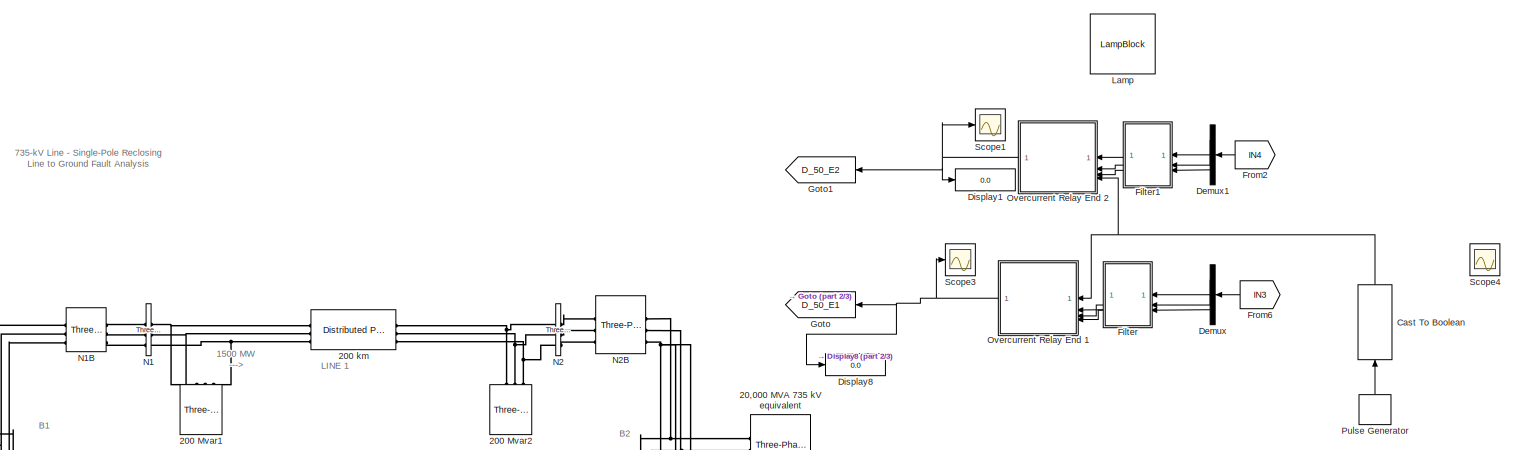
[diagram: root canvas - part 1/3, top right region]
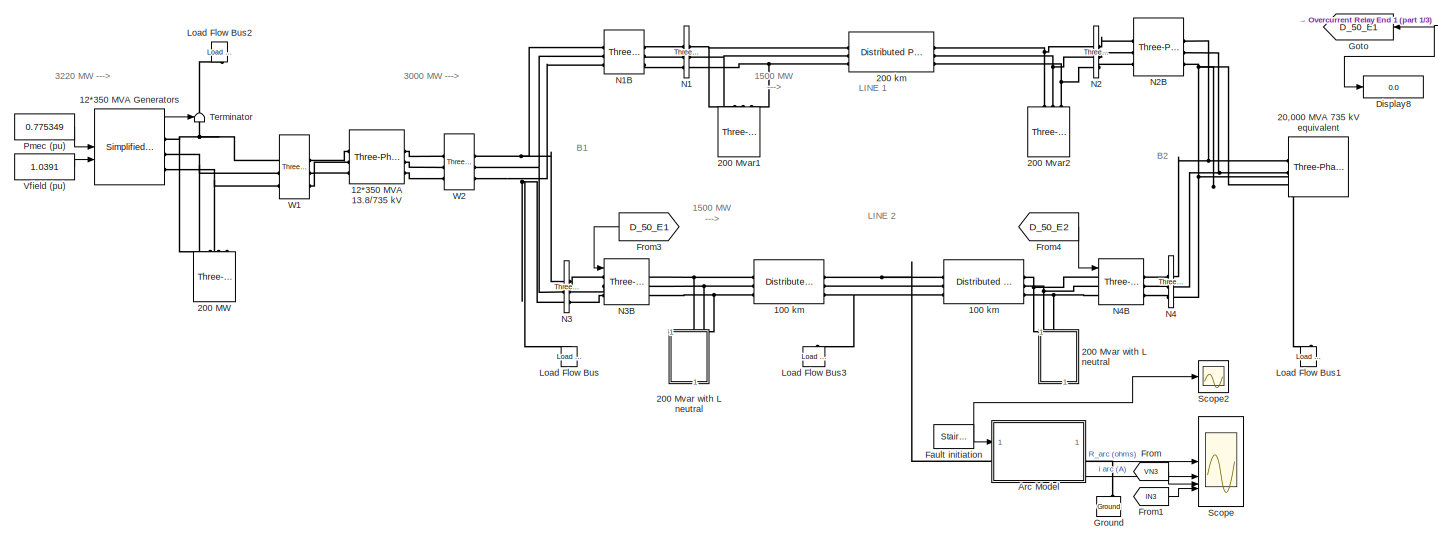
[diagram: root canvas - part 2/3, central region]
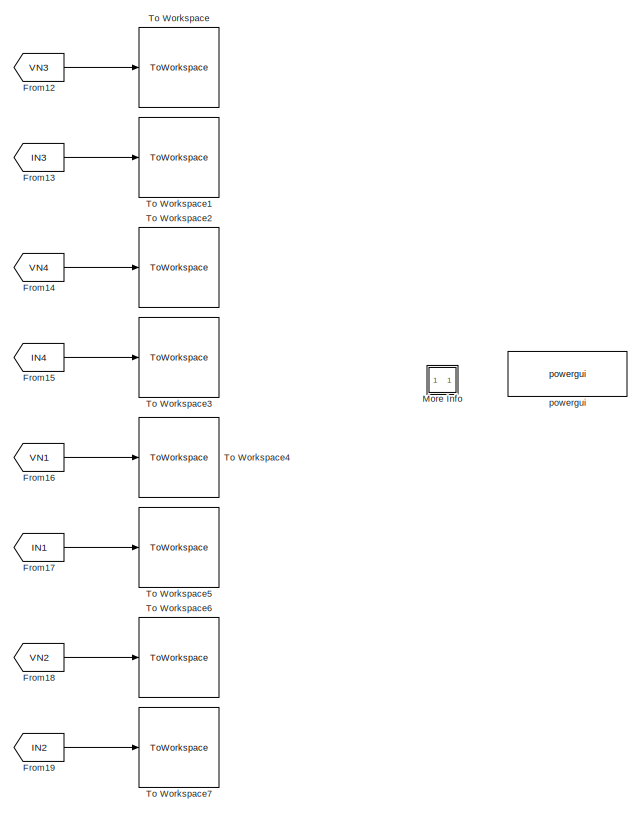
[diagram: root canvas - part 3/3, bottom left region]
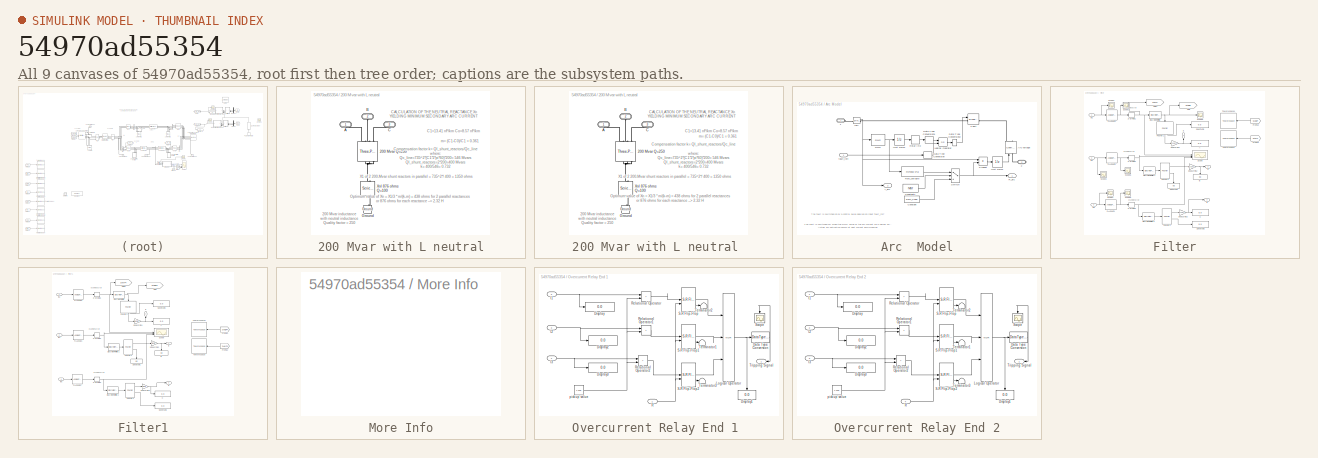
[diagram: thumbnail index - all 9 canvases of the model, root first then tree order]
MODEL slx_54970ad55354
KIND model
CONFIG AbsTol = auto
CONFIG EnableMultiTasking = off
CONFIG FixedStep = 1e-5
CONFIG MaxStep = auto
CONFIG MinStep = auto
CONFIG RelTol = 1e-4
CONFIG SampleTimeConstraint = Unconstrained
CONFIG SolverName = ode4
CONFIG StartTime = 0.0
CONFIG StopTime = 1
BLOCK [Reference]   N3B  REF=spsThreePhaseBreakerLib/Three-Phase Breaker
  AttributesFormatString = \n
  SourceBlock = spsThreePhaseBreakerLib/Three-Phase Breaker
  SourceType = Three-Phase Breaker
BLOCK [Reference]   N4B  REF=spsThreePhaseBreakerLib/Three-Phase Breaker
  AttributesFormatString = \n
  SourceBlock = spsThreePhaseBreakerLib/Three-Phase Breaker
  SourceType = Three-Phase Breaker
BLOCK [Reference]  N1B  REF=spsThreePhaseBreakerLib/Three-Phase Breaker
  AttributesFormatString = \n
  SourceBlock = spsThreePhaseBreakerLib/Three-Phase Breaker
  SourceType = Three-Phase Breaker
BLOCK [Reference]  W2  REF=spsThreePhaseBreakerLib/Three-Phase Breaker
  AttributesFormatString = \n
  SourceBlock = spsThreePhaseBreakerLib/Three-Phase Breaker
  SourceType = Three-Phase Breaker
BLOCK [Reference] 100  km   REF=spsDistributedParametersLineLib/Distributed Parameters Line
  AttributesFormatString = \n
  SourceBlock = spsDistributedParametersLineLib/Distributed Parameters Line
  SourceType = Distributed Parameters Line
BLOCK [Reference] 100  km    REF=spsDistributedParametersLineLib/Distributed Parameters Line
  AttributesFormatString = \n
  SourceBlock = spsDistributedParametersLineLib/Distributed Parameters Line
  SourceType = Distributed Parameters Line
BLOCK [Reference] 12*350 MVA 13.8//735 kV  REF=spsThreePhaseTransformerTwoWindingsLib/Three-Phase
Transformer
(Two Windings)
  AttributesFormatString = \n
  SourceBlock = spsThreePhaseTransformerTwoWindingsLib/Three-Phase\nTransformer\n(Two Windings)
  SourceType = Three-Phase Transformer (Two Windings)
BLOCK [Reference] 12*350 MVA Generators  REF=spsSimplifiedSynchronousMachinepuUnitsLib/Simplified Synchronous
Machine pu Units
  AttributesFormatString = \n
  SourceBlock = spsSimplifiedSynchronousMachinepuUnitsLib/Simplified Synchronous\nMachine pu Units
  SourceType = Simplified Synchronous Machine
BLOCK [Reference] 20,000 MVA 735 kV equivalent  REF=spsThreePhaseSourceLib/Three-Phase Source
  SourceBlock = spsThreePhaseSourceLib/Three-Phase Source
  SourceType = Three-Phase Source
BLOCK [Reference] 200  km  REF=spsDistributedParametersLineLib/Distributed Parameters Line
  AttributesFormatString = \n
  NameLocation = top
  SourceBlock = spsDistributedParametersLineLib/Distributed Parameters Line
  SourceType = Distributed Parameters Line
BLOCK [Reference] 200 MW  REF=spsThreePhaseSeriesRLCLoadLib/Three-Phase
Series RLC Load
  AttributesFormatString = \n
  NameLocation = right
  SourceBlock = spsThreePhaseSeriesRLCLoadLib/Three-Phase\nSeries RLC Load
  SourceType = Three-Phase Series RLC Load
BLOCK [SubSystem] 200 Mvar with L neutral
  NameLocation = right
BLOCK [SubSystem] 200 Mvar with L neutral 
  NameLocation = left
BLOCK [Reference] 200 Mvar with L neutral /200 Mvar Q=250  REF=spsThreePhaseSeriesRLCBranchLib/Three-Phase
Series RLC Branch
  AttributesFormatString = \n
  NameLocation = left
  SourceBlock = spsThreePhaseSeriesRLCBranchLib/Three-Phase\nSeries RLC Branch
  SourceType = Three-Phase Series RLC Branch
BLOCK [PMIOPort] 200 Mvar with L neutral /A
  NameLocation = right
  Side = Left
BLOCK [PMIOPort] 200 Mvar with L neutral /B
  NameLocation = right
  Port = 2
  Side = Left
BLOCK [PMIOPort] 200 Mvar with L neutral /C
  NameLocation = right
  Port = 3
  Side = Left
BLOCK [Reference] 200 Mvar with L neutral /Ground  REF=spsGroundLib/Ground
  AttributesFormatString = \n
  NameLocation = right
  SourceBlock = spsGroundLib/Ground
  SourceType = Ground
BLOCK [Reference] 200 Mvar with L neutral /Xnl 876 ohms Q=100  REF=spsSeriesRLCBranchLib/Series RLC Branch
  AttributesFormatString = \n
  NameLocation = left
  SourceBlock = spsSeriesRLCBranchLib/Series RLC Branch
  SourceType = Series RLC Branch
BLOCK [Reference] 200 Mvar with L neutral/200 Mvar Q=250  REF=spsThreePhaseSeriesRLCBranchLib/Three-Phase
Series RLC Branch
  AttributesFormatString = \n
  NameLocation = left
  SourceBlock = spsThreePhaseSeriesRLCBranchLib/Three-Phase\nSeries RLC Branch
  SourceType = Three-Phase Series RLC Branch
BLOCK [PMIOPort] 200 Mvar with L neutral/A
  NameLocation = right
  Side = Left
BLOCK [PMIOPort] 200 Mvar with L neutral/B
  NameLocation = right
  Port = 2
  Side = Left
BLOCK [PMIOPort] 200 Mvar with L neutral/C
  NameLocation = right
  Port = 3
  Side = Left
BLOCK [Reference] 200 Mvar with L neutral/Ground  REF=spsGroundLib/Ground
  AttributesFormatString = \n
  NameLocation = right
  SourceBlock = spsGroundLib/Ground
  SourceType = Ground
BLOCK [Reference] 200 Mvar with L neutral/Xnl 876 ohms Q=100  REF=spsSeriesRLCBranchLib/Series RLC Branch
  AttributesFormatString = \n
  NameLocation = left
  SourceBlock = spsSeriesRLCBranchLib/Series RLC Branch
  SourceType = Series RLC Branch
BLOCK [Reference] 200 Mvar1  REF=spsThreePhaseSeriesRLCLoadLib/Three-Phase
Series RLC Load
  AttributesFormatString = \n
  NameLocation = right
  SourceBlock = spsThreePhaseSeriesRLCLoadLib/Three-Phase\nSeries RLC Load
  SourceType = Three-Phase Series RLC Load
BLOCK [Reference] 200 Mvar2  REF=spsThreePhaseSeriesRLCLoadLib/Three-Phase
Series RLC Load
  AttributesFormatString = \n
  NameLocation = left
  SourceBlock = spsThreePhaseSeriesRLCLoadLib/Three-Phase\nSeries RLC Load
  SourceType = Three-Phase Series RLC Load
BLOCK [SubSystem] Arc  Model
BLOCK [PMIOPort] Arc  Model/1
  Side = Left
BLOCK [PMIOPort] Arc  Model/2
  Port = 2
  Side = Right
BLOCK [Reference] Arc  Model/Arc voltage  REF=spsControlledVoltageSourceLib/Controlled Voltage Source
  AttributesFormatString = \n
  Description = source block
  NameLocation = right
  SourceBlock = spsControlledVoltageSourceLib/Controlled Voltage Source
  SourceType = Controlled Voltage Source
BLOCK [Constant] Arc  Model/Constant
  Value = Rarc_fixed
BLOCK [Constant] Arc  Model/Constant1
  Value = rvar
BLOCK [DataTypeConversion] Arc  Model/Data Type Conversion
  OutDataTypeStr = boolean
BLOCK [DataTypeConversion] Arc  Model/Data Type Conversion1
  OutDataTypeStr = boolean
BLOCK [DataTypeConversion] Arc  Model/Data Type Conversion2
  OutDataTypeStr = double
BLOCK [Reference] Arc  Model/Fault  REF=spsBreakerLib/Breaker
  AttributesFormatString = \n
  SourceBlock = spsBreakerLib/Breaker
  SourceType = Breaker
BLOCK [Reference] Arc  Model/Iarc  REF=spsCurrentMeasurementLib/Current Measurement
  AttributesFormatString = \n
  SourceBlock = spsCurrentMeasurementLib/Current Measurement
  SourceType = Current Measurement
  Tag = PoWeRsYsTeMmEaSuReMeNt
BLOCK [Logic] Arc  Model/Logical Operator
  Operator = OR
BLOCK [Product] Arc  Model/Product
  InputSameDT = on
  OutDataTypeStr = Inherit: Same as first input
  SaturateOnIntegerOverflow = on
BLOCK [Reference] Arc  Model/RMS  REF=spsRMSLib/RMS
  SourceBlock = spsRMSLib/RMS
  SourceType = RMS
BLOCK [Outport] Arc  Model/R_arc
  VectorParamsAs1DForOutWhenUnconnected = off
BLOCK [Fcn] Arc  Model/Rarc_variable
  Expr = R0*exp(-k*u)
BLOCK [Relay] Arc  Model/Relay I>Io
  OffSwitchValue = I0
  OnSwitchValue = I0*1.2
  ZeroCross = off
BLOCK [Switch] Arc  Model/Switch
  SaturateOnIntegerOverflow = off
  Threshold = 0.5
  ZeroCross = off
BLOCK [UnitDelay] Arc  Model/Unit Delay
  HasFrameUpgradeWarning = on
  SampleTime = Ts
BLOCK [UnitDelay] Arc  Model/Unit Delay 
  HasFrameUpgradeWarning = on
  SampleTime = Ts
BLOCK [Inport] Arc  Model/fault_init
BLOCK [Outport] Arc  Model/i_arc
  Port = 2
  VectorParamsAs1DForOutWhenUnconnected = off
BLOCK [DataTypeConversion] Cast To Boolean
  NameLocation = right
  OutDataTypeStr = boolean
  RndMeth = Floor
  SaturateOnIntegerOverflow = off
BLOCK [Demux] Demux
  Outputs = 3
BLOCK [Demux] Demux1
  Outputs = 3
BLOCK [Display] Display1
  Decimation = 1
BLOCK [Display] Display8
  Decimation = 1
BLOCK [Reference] Fault initiation  REF=spsStairGeneratorLib/Stair
Generator
  NameLocation = top
  SourceBlock = spsStairGeneratorLib/Stair\nGenerator
  SourceType = Stair Generator
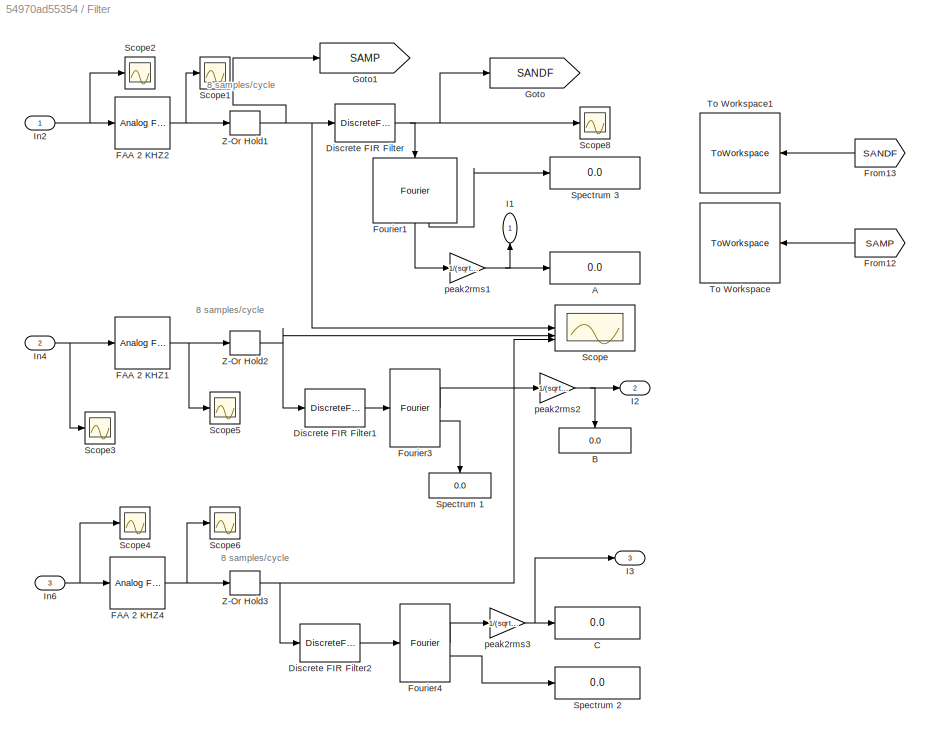
BLOCK [SubSystem] Filter
  NameLocation = top
BLOCK [Display] Filter/A 
  Decimation = 1
BLOCK [Display] Filter/B
  Decimation = 1
  NameLocation = left
BLOCK [Display] Filter/C
  Decimation = 1
BLOCK [DiscreteFir] Filter/Discrete FIR Filter
  CloseFcn = dspblkCoreblockFVToolHelper(gcbh,'close');
  Coefficients = [-0.0186094 -0.0236782 -0.0307391 -0.0185278 0.0274259 0.1023722 0.1816244 0.2325969 0.2325969 0.1816244 0.1023722 0.0274259 -0.0185278 -0.0307391 -0.0236782 -0.0186094]
  CopyFcn = dspblkCoreblockFVToolHelper(gcbh,'copy');
  DeleteFcn = dspblkCoreblockFVToolHelper(gcbh,'close');
  InputPortMap = u0
  LoadFcn = dspblkCoreblockFVToolHelper(gcbh,'load');
  ModelCloseFcn = dspblkCoreblockFVToolHelper(gcbh,'close');
  OutputPortMap = o0
  PostSaveFcn = dspblkCoreblockFVToolHelper(gcbh,'postsave');
  PreSaveFcn = dspblkCoreblockFVToolHelper(gcbh,'presave');
BLOCK [DiscreteFir] Filter/Discrete FIR Filter1
  CloseFcn = dspblkCoreblockFVToolHelper(gcbh,'close');
  Coefficients = [-0.0186094 -0.0236782 -0.0307391 -0.0185278 0.0274259 0.1023722 0.1816244 0.2325969 0.2325969 0.1816244 0.1023722 0.0274259 -0.0185278 -0.0307391 -0.0236782 -0.0186094]
  CopyFcn = dspblkCoreblockFVToolHelper(gcbh,'copy');
  DeleteFcn = dspblkCoreblockFVToolHelper(gcbh,'close');
  InputPortMap = u0
  LoadFcn = dspblkCoreblockFVToolHelper(gcbh,'load');
  ModelCloseFcn = dspblkCoreblockFVToolHelper(gcbh,'close');
  OutputPortMap = o0
  PostSaveFcn = dspblkCoreblockFVToolHelper(gcbh,'postsave');
  PreSaveFcn = dspblkCoreblockFVToolHelper(gcbh,'presave');
BLOCK [DiscreteFir] Filter/Discrete FIR Filter2
  CloseFcn = dspblkCoreblockFVToolHelper(gcbh,'close');
  Coefficients = [-0.0186094 -0.0236782 -0.0307391 -0.0185278 0.0274259 0.1023722 0.1816244 0.2325969 0.2325969 0.1816244 0.1023722 0.0274259 -0.0185278 -0.0307391 -0.0236782 -0.0186094]
  CopyFcn = dspblkCoreblockFVToolHelper(gcbh,'copy');
  DeleteFcn = dspblkCoreblockFVToolHelper(gcbh,'close');
  InputPortMap = u0
  LoadFcn = dspblkCoreblockFVToolHelper(gcbh,'load');
  ModelCloseFcn = dspblkCoreblockFVToolHelper(gcbh,'close');
  OutputPortMap = o0
  PostSaveFcn = dspblkCoreblockFVToolHelper(gcbh,'postsave');
  PreSaveFcn = dspblkCoreblockFVToolHelper(gcbh,'presave');
BLOCK [Reference] Filter/FAA 2 KHZ1  REF=dspfdesign/Analog
Filter Design
  SourceBlock = dspfdesign/Analog\nFilter Design
  SourceType = Analog Filter Design
BLOCK [Reference] Filter/FAA 2 KHZ2  REF=dspfdesign/Analog
Filter Design
  SourceBlock = dspfdesign/Analog\nFilter Design
  SourceType = Analog Filter Design
BLOCK [Reference] Filter/FAA 2 KHZ4  REF=dspfdesign/Analog
Filter Design
  SourceBlock = dspfdesign/Analog\nFilter Design
  SourceType = Analog Filter Design
BLOCK [Reference] Filter/Fourier1  REF=powerlib_extras/Measurements/Fourier
  NameLocation = left
  SourceBlock = powerlib_extras/Measurements/Fourier
  SourceType = Fourier analyser
BLOCK [Reference] Filter/Fourier3  REF=powerlib_extras/Measurements/Fourier
  SourceBlock = powerlib_extras/Measurements/Fourier
  SourceType = Fourier analyser
BLOCK [Reference] Filter/Fourier4  REF=powerlib_extras/Measurements/Fourier
  SourceBlock = powerlib_extras/Measurements/Fourier
  SourceType = Fourier analyser
BLOCK [From] Filter/From12
  GotoTag = SAMP
  NameLocation = top
BLOCK [From] Filter/From13
  GotoTag = SANDF
  NameLocation = top
BLOCK [Goto] Filter/Goto
  GotoTag = SANDF
BLOCK [Goto] Filter/Goto1
  GotoTag = SAMP
BLOCK [Outport] Filter/I1
  NameLocation = right
BLOCK [Outport] Filter/I2
  Port = 2
BLOCK [Outport] Filter/I3
  Port = 3
BLOCK [Inport] Filter/In2
BLOCK [Inport] Filter/In4
  Port = 2
BLOCK [Inport] Filter/In6
  Port = 3
BLOCK [Scope] Filter/Scope
  Floating = off
  NumInputPorts = 3
  ScopeSpecificationString = Simulink.scopes.TimeScopeBlockCfg('CurrentConfiguration', extmgr.ConfigurationSet(extmgr.Configuration('Core','General UI',true),extmgr.Configuration('Core','Source UI',true),extmgr.Configuration('Sources','WiredSimulink',true,'DataLoggingVariableName','ScopeData4'),extmgr.Configuration('Visuals','Time Domain',true,'SerializedDisplays',{struct('MinYLimReal','-19.16189','MaxYLimReal','18.88077','YL...<+3076ch>
BLOCK [Scope] Filter/Scope1
  Floating = off
  NumInputPorts = 1
  ScopeSpecificationString = Simulink.scopes.TimeScopeBlockCfg('CurrentConfiguration', extmgr.ConfigurationSet(extmgr.Configuration('Core','General UI',true),extmgr.Configuration('Core','Source UI',true),extmgr.Configuration('Sources','WiredSimulink',true,'DataLoggingVariableName','ScopeData8','DataLogging',true,'DataLoggingSaveFormat','StructureWithTime'),extmgr.Configuration('Visuals','Time Domain',true,'SerializedDisplays'...<+2251ch>
BLOCK [Scope] Filter/Scope2
  Floating = off
  NumInputPorts = 1
  ScopeSpecificationString = Simulink.scopes.TimeScopeBlockCfg('CurrentConfiguration', extmgr.ConfigurationSet(extmgr.Configuration('Core','General UI',true),extmgr.Configuration('Core','Source UI',true),extmgr.Configuration('Sources','WiredSimulink',true,'DataLoggingVariableName','ScopeData9','DataLogging',true,'DataLoggingSaveFormat','StructureWithTime'),extmgr.Configuration('Visuals','Time Domain',true,'SerializedDisplays'...<+1587ch>
BLOCK [Scope] Filter/Scope3
  Floating = off
  NumInputPorts = 1
  ScopeSpecificationString = Simulink.scopes.TimeScopeBlockCfg('CurrentConfiguration', extmgr.ConfigurationSet(extmgr.Configuration('Core','General UI',true),extmgr.Configuration('Core','Source UI',true),extmgr.Configuration('Sources','WiredSimulink',true,'DataLoggingVariableName','ScopeData10','DataLogging',true,'DataLoggingSaveFormat','StructureWithTime'),extmgr.Configuration('Visuals','Time Domain',true,'SerializedDisplays...<+1548ch>
BLOCK [Scope] Filter/Scope4
  Floating = off
  NumInputPorts = 1
  ScopeSpecificationString = Simulink.scopes.TimeScopeBlockCfg('CurrentConfiguration', extmgr.ConfigurationSet(extmgr.Configuration('Core','General UI',true),extmgr.Configuration('Core','Source UI',true),extmgr.Configuration('Sources','WiredSimulink',true,'DataLoggingVariableName','ScopeData11','DataLogging',true,'DataLoggingSaveFormat','StructureWithTime'),extmgr.Configuration('Visuals','Time Domain',true,'SerializedDisplays...<+1521ch>
BLOCK [Scope] Filter/Scope5
  Floating = off
  NumInputPorts = 1
  ScopeSpecificationString = Simulink.scopes.TimeScopeBlockCfg('CurrentConfiguration', extmgr.ConfigurationSet(extmgr.Configuration('Core','General UI',true),extmgr.Configuration('Core','Source UI',true),extmgr.Configuration('Sources','WiredSimulink',true,'DataLoggingVariableName','ScopeData12','DataLogging',true,'DataLoggingSaveFormat','StructureWithTime'),extmgr.Configuration('Visuals','Time Domain',true,'SerializedDisplays...<+1605ch>
BLOCK [Scope] Filter/Scope6
  Floating = off
  NumInputPorts = 1
  ScopeSpecificationString = Simulink.scopes.TimeScopeBlockCfg('CurrentConfiguration', extmgr.ConfigurationSet(extmgr.Configuration('Core','General UI',true),extmgr.Configuration('Core','Source UI',true),extmgr.Configuration('Sources','WiredSimulink',true,'DataLoggingVariableName','ScopeData13','DataLogging',true,'DataLoggingSaveFormat','StructureWithTime'),extmgr.Configuration('Visuals','Time Domain',true,'SerializedDisplays...<+1597ch>
BLOCK [Scope] Filter/Scope8
  Floating = off
  NumInputPorts = 1
  ScopeSpecificationString = Simulink.scopes.TimeScopeBlockCfg('CurrentConfiguration', extmgr.ConfigurationSet(extmgr.Configuration('Core','General UI',true),extmgr.Configuration('Core','Source UI',true),extmgr.Configuration('Sources','WiredSimulink',true,'DataLoggingVariableName','ScopeData1','DataLogging',true,'DataLoggingSaveFormat','StructureWithTime'),extmgr.Configuration('Visuals','Time Domain',true,'SerializedDisplays'...<+1605ch>
BLOCK [Display] Filter/Spectrum 1
  Decimation = 1
  NameLocation = left
BLOCK [Display] Filter/Spectrum 2
  Decimation = 1
BLOCK [Display] Filter/Spectrum 3
  Decimation = 1
BLOCK [ToWorkspace] Filter/To Workspace
  FixptAsFi = on
  MaxDataPoints = inf
  NameLocation = top
  SampleTime = -1
  SaveFormat = Timeseries
  VariableName = SAMP
BLOCK [ToWorkspace] Filter/To Workspace1
  FixptAsFi = on
  MaxDataPoints = inf
  NameLocation = top
  SampleTime = -1
  SaveFormat = Timeseries
  VariableName = SANDF
BLOCK [ZeroOrderHold] Filter/Z-Or Hold1
  SampleTime = 0.002
BLOCK [ZeroOrderHold] Filter/Z-Or Hold2
  SampleTime = 0.002
BLOCK [ZeroOrderHold] Filter/Z-Or Hold3
  SampleTime = 0.002
BLOCK [Gain] Filter/peak2rms1
  Gain = 1/(sqrt(2))
  NameLocation = top
  OutDataTypeStr = Inherit: Same as input
  ParamDataTypeStr = Inherit: Same as input
  SaturateOnIntegerOverflow = on
BLOCK [Gain] Filter/peak2rms2
  Gain = 1/(sqrt(2))
  NameLocation = top
  OutDataTypeStr = Inherit: Same as input
  ParamDataTypeStr = Inherit: Same as input
  SaturateOnIntegerOverflow = on
BLOCK [Gain] Filter/peak2rms3
  Gain = 1/(sqrt(2))
  NameLocation = top
  OutDataTypeStr = Inherit: Same as input
  ParamDataTypeStr = Inherit: Same as input
  SaturateOnIntegerOverflow = on
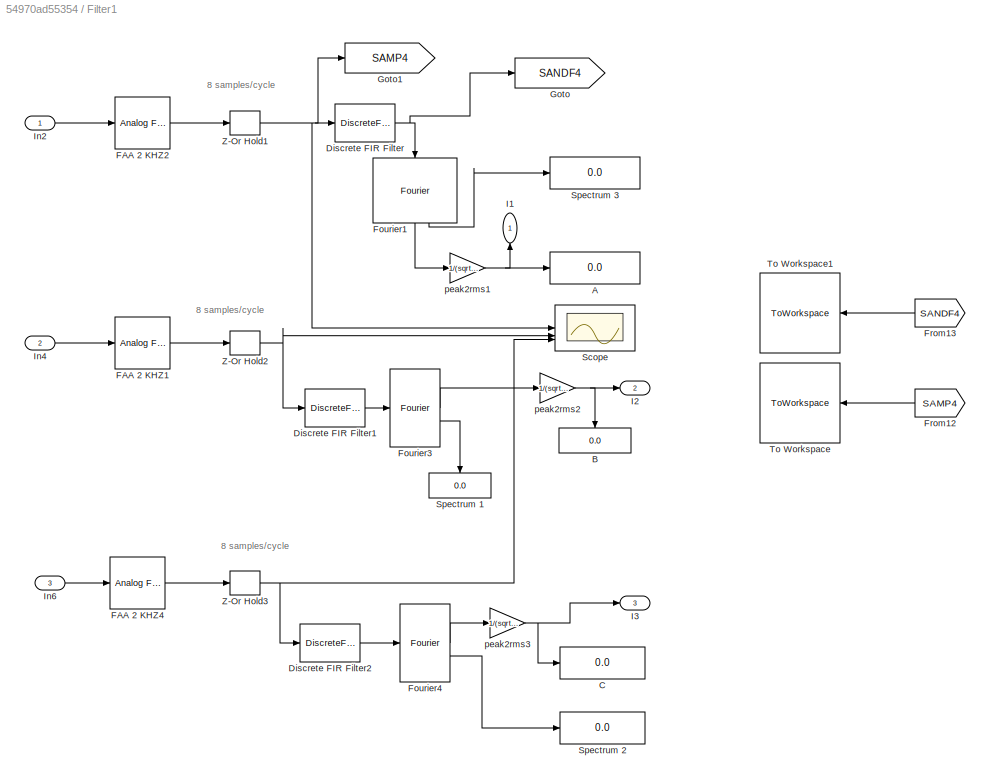
BLOCK [SubSystem] Filter1
  NameLocation = top
BLOCK [Display] Filter1/A 
  Decimation = 1
BLOCK [Display] Filter1/B
  Decimation = 1
  NameLocation = left
BLOCK [Display] Filter1/C
  Decimation = 1
BLOCK [DiscreteFir] Filter1/Discrete FIR Filter
  CloseFcn = dspblkCoreblockFVToolHelper(gcbh,'close');
  Coefficients = [-0.0186094 -0.0236782 -0.0307391 -0.0185278 0.0274259 0.1023722 0.1816244 0.2325969 0.2325969 0.1816244 0.1023722 0.0274259 -0.0185278 -0.0307391 -0.0236782 -0.0186094]
  CopyFcn = dspblkCoreblockFVToolHelper(gcbh,'copy');
  DeleteFcn = dspblkCoreblockFVToolHelper(gcbh,'close');
  InputPortMap = u0
  LoadFcn = dspblkCoreblockFVToolHelper(gcbh,'load');
  ModelCloseFcn = dspblkCoreblockFVToolHelper(gcbh,'close');
  OutputPortMap = o0
  PostSaveFcn = dspblkCoreblockFVToolHelper(gcbh,'postsave');
  PreSaveFcn = dspblkCoreblockFVToolHelper(gcbh,'presave');
BLOCK [DiscreteFir] Filter1/Discrete FIR Filter1
  CloseFcn = dspblkCoreblockFVToolHelper(gcbh,'close');
  Coefficients = [-0.0186094 -0.0236782 -0.0307391 -0.0185278 0.0274259 0.1023722 0.1816244 0.2325969 0.2325969 0.1816244 0.1023722 0.0274259 -0.0185278 -0.0307391 -0.0236782 -0.0186094]
  CopyFcn = dspblkCoreblockFVToolHelper(gcbh,'copy');
  DeleteFcn = dspblkCoreblockFVToolHelper(gcbh,'close');
  InputPortMap = u0
  LoadFcn = dspblkCoreblockFVToolHelper(gcbh,'load');
  ModelCloseFcn = dspblkCoreblockFVToolHelper(gcbh,'close');
  OutputPortMap = o0
  PostSaveFcn = dspblkCoreblockFVToolHelper(gcbh,'postsave');
  PreSaveFcn = dspblkCoreblockFVToolHelper(gcbh,'presave');
BLOCK [DiscreteFir] Filter1/Discrete FIR Filter2
  CloseFcn = dspblkCoreblockFVToolHelper(gcbh,'close');
  Coefficients = [-0.0186094 -0.0236782 -0.0307391 -0.0185278 0.0274259 0.1023722 0.1816244 0.2325969 0.2325969 0.1816244 0.1023722 0.0274259 -0.0185278 -0.0307391 -0.0236782 -0.0186094]
  CopyFcn = dspblkCoreblockFVToolHelper(gcbh,'copy');
  DeleteFcn = dspblkCoreblockFVToolHelper(gcbh,'close');
  InputPortMap = u0
  LoadFcn = dspblkCoreblockFVToolHelper(gcbh,'load');
  ModelCloseFcn = dspblkCoreblockFVToolHelper(gcbh,'close');
  OutputPortMap = o0
  PostSaveFcn = dspblkCoreblockFVToolHelper(gcbh,'postsave');
  PreSaveFcn = dspblkCoreblockFVToolHelper(gcbh,'presave');
BLOCK [Reference] Filter1/FAA 2 KHZ1  REF=dspfdesign/Analog
Filter Design
  SourceBlock = dspfdesign/Analog\nFilter Design
  SourceType = Analog Filter Design
BLOCK [Reference] Filter1/FAA 2 KHZ2  REF=dspfdesign/Analog
Filter Design
  SourceBlock = dspfdesign/Analog\nFilter Design
  SourceType = Analog Filter Design
BLOCK [Reference] Filter1/FAA 2 KHZ4  REF=dspfdesign/Analog
Filter Design
  SourceBlock = dspfdesign/Analog\nFilter Design
  SourceType = Analog Filter Design
BLOCK [Reference] Filter1/Fourier1  REF=powerlib_extras/Measurements/Fourier
  NameLocation = left
  SourceBlock = powerlib_extras/Measurements/Fourier
  SourceType = Fourier analyser
BLOCK [Reference] Filter1/Fourier3  REF=powerlib_extras/Measurements/Fourier
  SourceBlock = powerlib_extras/Measurements/Fourier
  SourceType = Fourier analyser
BLOCK [Reference] Filter1/Fourier4  REF=powerlib_extras/Measurements/Fourier
  SourceBlock = powerlib_extras/Measurements/Fourier
  SourceType = Fourier analyser
BLOCK [From] Filter1/From12
  GotoTag = SAMP4
  NameLocation = top
BLOCK [From] Filter1/From13
  GotoTag = SANDF4
  NameLocation = top
BLOCK [Goto] Filter1/Goto
  GotoTag = SANDF4
BLOCK [Goto] Filter1/Goto1
  GotoTag = SAMP4
BLOCK [Outport] Filter1/I1
  NameLocation = right
BLOCK [Outport] Filter1/I2
  Port = 2
BLOCK [Outport] Filter1/I3
  Port = 3
BLOCK [Inport] Filter1/In2
BLOCK [Inport] Filter1/In4
  Port = 2
BLOCK [Inport] Filter1/In6
  Port = 3
BLOCK [Scope] Filter1/Scope
  Floating = off
  NumInputPorts = 3
  ScopeSpecificationString = Simulink.scopes.TimeScopeBlockCfg('CurrentConfiguration', extmgr.ConfigurationSet(extmgr.Configuration('Core','General UI',true),extmgr.Configuration('Core','Source UI',true),extmgr.Configuration('Sources','WiredSimulink',true,'DataLoggingVariableName','ScopeData4'),extmgr.Configuration('Visuals','Time Domain',true,'SerializedDisplays',{struct('MinYLimReal','-6071316.37194','MaxYLimReal','54198833...<+3120ch>
BLOCK [Display] Filter1/Spectrum 1
  Decimation = 1
  NameLocation = left
BLOCK [Display] Filter1/Spectrum 2
  Decimation = 1
BLOCK [Display] Filter1/Spectrum 3
  Decimation = 1
BLOCK [ToWorkspace] Filter1/To Workspace
  FixptAsFi = on
  MaxDataPoints = inf
  NameLocation = top
  SampleTime = -1
  SaveFormat = Timeseries
  VariableName = SAMP4
BLOCK [ToWorkspace] Filter1/To Workspace1
  FixptAsFi = on
  MaxDataPoints = inf
  NameLocation = top
  SampleTime = -1
  SaveFormat = Timeseries
  VariableName = SANDF4
BLOCK [ZeroOrderHold] Filter1/Z-Or Hold1
  SampleTime = 0.002
BLOCK [ZeroOrderHold] Filter1/Z-Or Hold2
  SampleTime = 0.002
BLOCK [ZeroOrderHold] Filter1/Z-Or Hold3
  SampleTime = 0.002
BLOCK [Gain] Filter1/peak2rms1
  Gain = 1/(sqrt(2))
  NameLocation = top
  OutDataTypeStr = Inherit: Same as input
  ParamDataTypeStr = Inherit: Same as input
  SaturateOnIntegerOverflow = on
BLOCK [Gain] Filter1/peak2rms2
  Gain = 1/(sqrt(2))
  NameLocation = top
  OutDataTypeStr = Inherit: Same as input
  ParamDataTypeStr = Inherit: Same as input
  SaturateOnIntegerOverflow = on
BLOCK [Gain] Filter1/peak2rms3
  Gain = 1/(sqrt(2))
  NameLocation = top
  OutDataTypeStr = Inherit: Same as input
  ParamDataTypeStr = Inherit: Same as input
  SaturateOnIntegerOverflow = on
BLOCK [From] From
  GotoTag = VN3
  TagVisibility = global
BLOCK [From] From1
  GotoTag = IN3
  TagVisibility = global
BLOCK [From] From12
  GotoTag = VN3
  TagVisibility = global
BLOCK [From] From13
  GotoTag = IN3
  TagVisibility = global
BLOCK [From] From14
  GotoTag = VN4
  TagVisibility = global
BLOCK [From] From15
  GotoTag = IN4
  TagVisibility = global
BLOCK [From] From16
  GotoTag = VN1
  TagVisibility = global
BLOCK [From] From17
  GotoTag = IN1
  TagVisibility = global
BLOCK [From] From18
  GotoTag = VN2
  TagVisibility = global
BLOCK [From] From19
  GotoTag = IN2
  TagVisibility = global
BLOCK [From] From2
  GotoTag = IN4
  TagVisibility = global
BLOCK [From] From3
  GotoTag = D_50_E1
  NameLocation = top
BLOCK [From] From4
  GotoTag = D_50_E2
BLOCK [From] From6
  GotoTag = IN3
  TagVisibility = global
BLOCK [Goto] Goto
  GotoTag = D_50_E1
  NameLocation = top
BLOCK [Goto] Goto1
  GotoTag = D_50_E2
  NameLocation = top
BLOCK [Reference] Ground  REF=spsGroundLib/Ground
  AttributesFormatString = \n
  NameLocation = right
  SourceBlock = spsGroundLib/Ground
  SourceType = Ground
BLOCK [LampBlock] Lamp
  LabelPosition = Hide
BLOCK [Reference] Load Flow Bus  REF=spsLoadFlowBusLib/Load Flow Bus
  AttributesFormatString = %<ID>\n%<Vbase>V\n%<VLF>pu\n%<angleLF>deg.
  NameLocation = right
  SourceBlock = spsLoadFlowBusLib/Load Flow Bus
  SourceType = Load Flow Bus
BLOCK [Reference] Load Flow Bus1  REF=spsLoadFlowBusLib/Load Flow Bus
  AttributesFormatString = %<ID>\n%<Vbase>V\n%<VLF>pu\n%<angleLF>deg.
  NameLocation = right
  SourceBlock = spsLoadFlowBusLib/Load Flow Bus
  SourceType = Load Flow Bus
BLOCK [Reference] Load Flow Bus2  REF=spsLoadFlowBusLib/Load Flow Bus
  AttributesFormatString = %<ID>\n%<Vbase>V\n%<VLF>pu\n%<angleLF>deg.
  NameLocation = right
  SourceBlock = spsLoadFlowBusLib/Load Flow Bus
  SourceType = Load Flow Bus
BLOCK [Reference] Load Flow Bus3  REF=spsLoadFlowBusLib/Load Flow Bus
  AttributesFormatString = %<ID>\n%<Vbase>V\n%<VLF>pu\n%<angleLF>deg.
  NameLocation = left
  SourceBlock = spsLoadFlowBusLib/Load Flow Bus
  SourceType = Load Flow Bus
BLOCK [SubSystem] More Info
  OpenFcn = showExample("simscapeelectricalsps/SinglePoleLineReclosingExample")
BLOCK [Reference] N1  REF=spsThreePhaseVIMeasurementLib/Three-Phase
V-I Measurement
  SourceBlock = spsThreePhaseVIMeasurementLib/Three-Phase\nV-I Measurement
  SourceType = Three-Phase VI Measurement
BLOCK [Reference] N2  REF=spsThreePhaseVIMeasurementLib/Three-Phase
V-I Measurement
  SourceBlock = spsThreePhaseVIMeasurementLib/Three-Phase\nV-I Measurement
  SourceType = Three-Phase VI Measurement
BLOCK [Reference] N2B  REF=spsThreePhaseBreakerLib/Three-Phase Breaker
  AttributesFormatString = \n
  SourceBlock = spsThreePhaseBreakerLib/Three-Phase Breaker
  SourceType = Three-Phase Breaker
BLOCK [Reference] N3  REF=spsThreePhaseVIMeasurementLib/Three-Phase
V-I Measurement
  SourceBlock = spsThreePhaseVIMeasurementLib/Three-Phase\nV-I Measurement
  SourceType = Three-Phase VI Measurement
BLOCK [Reference] N4  REF=spsThreePhaseVIMeasurementLib/Three-Phase
V-I Measurement
  SourceBlock = spsThreePhaseVIMeasurementLib/Three-Phase\nV-I Measurement
  SourceType = Three-Phase VI Measurement
BLOCK [SubSystem] Overcurrent Relay End 1 
  NameLocation = top
BLOCK [DataTypeConversion] Overcurrent Relay End 1 /Data Type Conversion
  OutDataTypeStr = double
  RndMeth = Floor
  SaturateOnIntegerOverflow = off
BLOCK [Display] Overcurrent Relay End 1 /Display
  Decimation = 1
BLOCK [Display] Overcurrent Relay End 1 /Display1
  Decimation = 1
  NameLocation = left
BLOCK [Display] Overcurrent Relay End 1 /Display2
  Decimation = 1
BLOCK [Display] Overcurrent Relay End 1 /Display3
  Decimation = 1
BLOCK [Inport] Overcurrent Relay End 1 /I1
  Port = 2
BLOCK [Inport] Overcurrent Relay End 1 /I2
  Port = 3
BLOCK [Inport] Overcurrent Relay End 1 /I3
  Port = 4
BLOCK [Logic] Overcurrent Relay End 1 /Logical Operator
  AllPortsSameDT = off
  Inputs = 3
  Operator = NOR
  OutDataTypeStr = boolean
BLOCK [Inport] Overcurrent Relay End 1 /R
BLOCK [RelationalOperator] Overcurrent Relay End 1 /Relational Operator
  InputSameDT = off
  Operator = >
  OutDataTypeStr = boolean
BLOCK [RelationalOperator] Overcurrent Relay End 1 /Relational Operator1
  InputSameDT = off
  Operator = >
  OutDataTypeStr = boolean
BLOCK [RelationalOperator] Overcurrent Relay End 1 /Relational Operator2
  InputSameDT = off
  Operator = >
  OutDataTypeStr = boolean
BLOCK [Reference] Overcurrent Relay End 1 /S-R Flip-Flop  REF=simulink_extras/Flip Flops/S-R
Flip-Flop
  SourceBlock = simulink_extras/Flip Flops/S-R\nFlip-Flop
  SourceType = SRFlipFlop
BLOCK [Reference] Overcurrent Relay End 1 /S-R Flip-Flop1  REF=simulink_extras/Flip Flops/S-R
Flip-Flop
  SourceBlock = simulink_extras/Flip Flops/S-R\nFlip-Flop
  SourceType = SRFlipFlop
BLOCK [Reference] Overcurrent Relay End 1 /S-R Flip-Flop2  REF=simulink_extras/Flip Flops/S-R
Flip-Flop
  SourceBlock = simulink_extras/Flip Flops/S-R\nFlip-Flop
  SourceType = SRFlipFlop
BLOCK [Scope] Overcurrent Relay End 1 /Scope
  Floating = off
  NameLocation = left
  NumInputPorts = 1
  ScopeSpecificationString = Simulink.scopes.TimeScopeBlockCfg('CurrentConfiguration', extmgr.ConfigurationSet(extmgr.Configuration('Core','General UI',true),extmgr.Configuration('Core','Source UI',true),extmgr.Configuration('Sources','WiredSimulink',true,'DataLoggingVariableName','ScopeData5'),extmgr.Configuration('Visuals','Time Domain',true,'SerializedDisplays',{struct('MinYLimReal','-0.125','MaxYLimReal','1.125','YLabelRe...<+1367ch>
BLOCK [Terminator] Overcurrent Relay End 1 /Terminator1
BLOCK [Terminator] Overcurrent Relay End 1 /Terminator2
BLOCK [Terminator] Overcurrent Relay End 1 /Terminator3
BLOCK [Outport] Overcurrent Relay End 1 /Tripping Signal
  VectorParamsAs1DForOutWhenUnconnected = off
BLOCK [Constant] Overcurrent Relay End 1 /pick up value
  Value = 7.375
BLOCK [SubSystem] Overcurrent Relay End 2
  NameLocation = top
BLOCK [DataTypeConversion] Overcurrent Relay End 2/Data Type Conversion
  OutDataTypeStr = double
  RndMeth = Floor
  SaturateOnIntegerOverflow = off
BLOCK [Display] Overcurrent Relay End 2/Display
  Decimation = 1
BLOCK [Display] Overcurrent Relay End 2/Display1
  Decimation = 1
  NameLocation = left
BLOCK [Display] Overcurrent Relay End 2/Display2
  Decimation = 1
BLOCK [Display] Overcurrent Relay End 2/Display3
  Decimation = 1
BLOCK [Inport] Overcurrent Relay End 2/I1
BLOCK [Inport] Overcurrent Relay End 2/I2
  Port = 2
BLOCK [Inport] Overcurrent Relay End 2/I3
  Port = 3
BLOCK [Logic] Overcurrent Relay End 2/Logical Operator
  AllPortsSameDT = off
  Inputs = 3
  Operator = NOR
  OutDataTypeStr = boolean
BLOCK [Inport] Overcurrent Relay End 2/R
  Port = 4
BLOCK [RelationalOperator] Overcurrent Relay End 2/Relational Operator
  InputSameDT = off
  Operator = >
  OutDataTypeStr = boolean
BLOCK [RelationalOperator] Overcurrent Relay End 2/Relational Operator1
  InputSameDT = off
  Operator = >
  OutDataTypeStr = boolean
BLOCK [RelationalOperator] Overcurrent Relay End 2/Relational Operator2
  InputSameDT = off
  Operator = >
  OutDataTypeStr = boolean
BLOCK [Reference] Overcurrent Relay End 2/S-R Flip-Flop  REF=simulink_extras/Flip Flops/S-R
Flip-Flop
  SourceBlock = simulink_extras/Flip Flops/S-R\nFlip-Flop
  SourceType = SRFlipFlop
BLOCK [Reference] Overcurrent Relay End 2/S-R Flip-Flop1  REF=simulink_extras/Flip Flops/S-R
Flip-Flop
  SourceBlock = simulink_extras/Flip Flops/S-R\nFlip-Flop
  SourceType = SRFlipFlop
BLOCK [Reference] Overcurrent Relay End 2/S-R Flip-Flop2  REF=simulink_extras/Flip Flops/S-R
Flip-Flop
  SourceBlock = simulink_extras/Flip Flops/S-R\nFlip-Flop
  SourceType = SRFlipFlop
BLOCK [Scope] Overcurrent Relay End 2/Scope
  Floating = off
  NameLocation = left
  NumInputPorts = 1
  ScopeSpecificationString = Simulink.scopes.TimeScopeBlockCfg('CurrentConfiguration', extmgr.ConfigurationSet(extmgr.Configuration('Core','General UI',true),extmgr.Configuration('Core','Source UI',true),extmgr.Configuration('Sources','WiredSimulink',true,'DataLoggingVariableName','ScopeData5'),extmgr.Configuration('Visuals','Time Domain',true,'SerializedDisplays',{struct('MinYLimReal','-0.125','MaxYLimReal','1.125','YLabelRe...<+1367ch>
BLOCK [Terminator] Overcurrent Relay End 2/Terminator1
BLOCK [Terminator] Overcurrent Relay End 2/Terminator2
BLOCK [Terminator] Overcurrent Relay End 2/Terminator3
BLOCK [Outport] Overcurrent Relay End 2/Tripping Signal
  VectorParamsAs1DForOutWhenUnconnected = off
BLOCK [Constant] Overcurrent Relay End 2/pick up value
  Value = 7.375
BLOCK [Constant] Pmec (pu)
  NameLocation = top
  Value = 0.775349
BLOCK [DiscretePulseGenerator] Pulse Generator
  NameLocation = right
  Period = [0.4]
  PulseType = Time based
BLOCK [Scope] Scope
  Floating = off
  NumInputPorts = 4
  ScopeSpecificationString = Simulink.scopes.TimeScopeBlockCfg('CurrentConfiguration', extmgr.ConfigurationSet(extmgr.Configuration('Core','General UI',true),extmgr.Configuration('Core','Source UI',true),extmgr.Configuration('Sources','WiredSimulink',true,'DataLoggingSaveFormat','Array','DataLoggingDecimation','1','DataLoggingDecimateData',true),extmgr.Configuration('Visuals','Time Domain',true,'SerializedDisplays',{struct('M...<+4256ch>
BLOCK [Scope] Scope1
  Floating = off
  NumInputPorts = 1
  ScopeSpecificationString = Simulink.scopes.TimeScopeBlockCfg('CurrentConfiguration', extmgr.ConfigurationSet(extmgr.Configuration('Core','General UI',true),extmgr.Configuration('Core','Source UI',true),extmgr.Configuration('Sources','WiredSimulink',true,'DataLoggingVariableName','ScopeData1'),extmgr.Configuration('Visuals','Time Domain',true,'SerializedDisplays',{struct('MinYLimReal','0.9','MaxYLimReal','1.1','YLabelReal','...<+1503ch>
BLOCK [Scope] Scope2
  Floating = off
  NumInputPorts = 1
  ScopeSpecificationString = Simulink.scopes.TimeScopeBlockCfg('CurrentConfiguration', extmgr.ConfigurationSet(extmgr.Configuration('Core','General UI',true),extmgr.Configuration('Core','Source UI',true),extmgr.Configuration('Sources','WiredSimulink',true,'DataLoggingVariableName','ScopeData2'),extmgr.Configuration('Visuals','Time Domain',true,'SerializedDisplays',{struct('MinYLimReal','-0.125','MaxYLimReal','1.125','YLabelRe...<+1525ch>
BLOCK [Scope] Scope3
  Floating = off
  NumInputPorts = 1
  ScopeSpecificationString = Simulink.scopes.TimeScopeBlockCfg('CurrentConfiguration', extmgr.ConfigurationSet(extmgr.Configuration('Core','General UI',true),extmgr.Configuration('Core','Source UI',true),extmgr.Configuration('Sources','WiredSimulink',true,'DataLoggingVariableName','ScopeData1'),extmgr.Configuration('Visuals','Time Domain',true,'SerializedDisplays',{struct('MinYLimReal','-0.125','MaxYLimReal','1.125','YLabelRe...<+1534ch>
BLOCK [Scope] Scope4
  Floating = off
  NumInputPorts = 1
  ScopeSpecificationString = Simulink.scopes.TimeScopeBlockCfg('CurrentConfiguration', extmgr.ConfigurationSet(extmgr.Configuration('Core','General UI',true),extmgr.Configuration('Core','Source UI',true),extmgr.Configuration('Sources','WiredSimulink',true,'DataLoggingVariableName','ScopeData3'),extmgr.Configuration('Visuals','Time Domain',true,'SerializedDisplays',{struct('MinYLimReal','-0.125','MaxYLimReal','1.125','YLabelRe...<+1534ch>
BLOCK [Terminator] Terminator
BLOCK [ToWorkspace] To Workspace
  FixptAsFi = on
  MaxDataPoints = inf
  SampleTime = -1
  SaveFormat = Timeseries
  VariableName = VN3
BLOCK [ToWorkspace] To Workspace1
  FixptAsFi = on
  MaxDataPoints = inf
  SampleTime = -1
  SaveFormat = Timeseries
  VariableName = IN3
BLOCK [ToWorkspace] To Workspace2
  FixptAsFi = on
  MaxDataPoints = inf
  SampleTime = -1
  SaveFormat = Timeseries
  VariableName = VN4
BLOCK [ToWorkspace] To Workspace3
  FixptAsFi = on
  MaxDataPoints = inf
  SampleTime = -1
  SaveFormat = Timeseries
  VariableName = IN4
BLOCK [ToWorkspace] To Workspace4
  FixptAsFi = on
  MaxDataPoints = inf
  SampleTime = -1
  SaveFormat = Timeseries
  VariableName = VN1
BLOCK [ToWorkspace] To Workspace5
  FixptAsFi = on
  MaxDataPoints = inf
  SampleTime = -1
  SaveFormat = Timeseries
  VariableName = IN1
BLOCK [ToWorkspace] To Workspace6
  FixptAsFi = on
  MaxDataPoints = inf
  SampleTime = -1
  SaveFormat = Timeseries
  VariableName = VN2
BLOCK [ToWorkspace] To Workspace7
  FixptAsFi = on
  MaxDataPoints = inf
  SampleTime = -1
  SaveFormat = Timeseries
  VariableName = IN2
BLOCK [Constant] Vfield (pu)
  Value = 1.0391
BLOCK [Reference] W1  REF=spsThreePhaseBreakerLib/Three-Phase Breaker
  AttributesFormatString = \n
  SourceBlock = spsThreePhaseBreakerLib/Three-Phase Breaker
  SourceType = Three-Phase Breaker
BLOCK [Reference] powergui  REF=spspowerguiLib/powergui
  Priority = 2
  SourceBlock = spspowerguiLib/powergui
  SourceType = PSB option menu block
ANNOTATION (root): 1500 MW --->
ANNOTATION (root): 3000 MW --->
ANNOTATION (root): 3220 MW --->
ANNOTATION (root): 735-kV Line - Single-Pole Reclosing Line to Ground Fault Analysis
ANNOTATION (root): B1
ANNOTATION (root): B2
ANNOTATION (root): LINE 1
ANNOTATION (root): LINE 2
ANNOTATION 200 Mvar with L neutral: 200 Mvar inductance with neutral inductance Quality factor = 250
ANNOTATION 200 Mvar with L neutral: C1=13.41 nF/km Co=8.57 nF/km
ANNOTATION 200 Mvar with L neutral: CALCULATION OF THE NEUTRAL REACTANCE Xn YIELDING MINIMUM SECONDARY ARC CURRENT
ANNOTATION 200 Mvar with L neutral: Compensation factor k= Ql_shunt_reactors/Qc_line where: Qc_line=735^2*(C1*2*pi*60)*200= 546 Mvars Ql_shunt_reactors=2*200=400 Mvars k= 400/546= 0.732
ANNOTATION 200 Mvar with L neutral: Optimum value of Xn = X1/3 * m/(k-m) = 438 ohms for 2 parallel reactances or 876 ohms for each reactance --> 2.32 H
ANNOTATION 200 Mvar with L neutral: X1 of 2 200-Mvar shunt reactors in parallel = 735^2*/ 400 = 1350 ohms
ANNOTATION 200 Mvar with L neutral: m= (C1-C0)/C1 = 0.361
ANNOTATION 200 Mvar with L neutral : 200 Mvar inductance with neutral inductance Quality factor = 250
ANNOTATION 200 Mvar with L neutral : C1=13.41 nF/km Co=8.57 nF/km
ANNOTATION 200 Mvar with L neutral : CALCULATION OF THE NEUTRAL REACTANCE Xn YIELDING MINIMUM SECONDARY ARC CURRENT
ANNOTATION 200 Mvar with L neutral : Compensation factor k= Ql_shunt_reactors/Qc_line where: Qc_line=735^2*(C1*2*pi*60)*200= 546 Mvars Ql_shunt_reactors=2*200=400 Mvars k= 400/546= 0.732
ANNOTATION 200 Mvar with L neutral : Optimum value of Xn = X1/3 * m/(k-m) = 438 ohms for 2 parallel reactances or 876 ohms for each reactance --> 2.32 H
ANNOTATION 200 Mvar with L neutral : X1 of 2 200-Mvar shunt reactors in parallel = 735^2*/ 400 = 1350 ohms
ANNOTATION 200 Mvar with L neutral : m= (C1-C0)/C1 = 0.361
ANNOTATION Arc  Model: The fault is switched off when the RMS value of the arc current falls below 50 A. Actual arc extinction occurs at next current zero-crossing
ANNOTATION Arc  Model: The fault is switched on by a control pulse applied on input 'fault_init'
ANNOTATION Filter: 8 samples/cycle
ANNOTATION Filter1: 8 samples/cycle
LINE 12*350 MVA Generators:1 -> Terminator:1
LINE Arc  Model/Constant1:1 -> Arc  Model/Switch:2
LINE Arc  Model/Constant:1 -> Arc  Model/Switch:3
LINE Arc  Model/Data Type Conversion1:1 -> Arc  Model/Logical Operator:1
LINE Arc  Model/Data Type Conversion2:1 -> Arc  Model/Fault:1
LINE Arc  Model/Data Type Conversion:1 -> Arc  Model/Logical Operator:2
NET Arc  Model/Iarc:1 -> Arc  Model/Product:1, Arc  Model/RMS:1, Arc  Model/i_arc:1
LINE Arc  Model/Logical Operator:1 -> Arc  Model/Data Type Conversion2:1
LINE Arc  Model/Product:1 -> Arc  Model/Unit Delay:1
NET Arc  Model/RMS:1 -> Arc  Model/Rarc_variable:1, Arc  Model/Unit Delay :1
LINE Arc  Model/Rarc_variable:1 -> Arc  Model/Switch:1
LINE Arc  Model/Relay I>Io:1 -> Arc  Model/Data Type Conversion1:1
NET Arc  Model/Switch:1 -> Arc  Model/Product:2, Arc  Model/R_arc:1
LINE Arc  Model/Unit Delay :1 -> Arc  Model/Relay I>Io:1
LINE Arc  Model/Unit Delay:1 -> Arc  Model/Arc voltage:1
LINE Arc  Model/fault_init:1 -> Arc  Model/Data Type Conversion:1
LINE Arc  Model:1 -> Scope:1
LINE Arc  Model:2 -> Scope:2
NET Cast To Boolean:1 -> Overcurrent Relay End 1 :1, Overcurrent Relay End 2:4
LINE Demux1:1 -> Filter1:1
LINE Demux1:2 -> Filter1:2
LINE Demux1:3 -> Filter1:3
LINE Demux:1 -> Filter:1
LINE Demux:2 -> Filter:2
LINE Demux:3 -> Filter:3
NET Fault initiation:1 -> Arc  Model:1, Scope2:1
LINE Filter/Discrete FIR Filter1:1 -> Filter/Fourier3:1
LINE Filter/Discrete FIR Filter2:1 -> Filter/Fourier4:1
NET Filter/Discrete FIR Filter:1 -> Filter/Fourier1:1, Filter/Goto:1, Filter/Scope8:1
NET Filter/FAA 2 KHZ1:1 -> Filter/Scope5:1, Filter/Z-Or Hold2:1
NET Filter/FAA 2 KHZ2:1 -> Filter/Scope1:1, Filter/Z-Or Hold1:1
NET Filter/FAA 2 KHZ4:1 -> Filter/Scope6:1, Filter/Z-Or Hold3:1
LINE Filter/Fourier1:1 -> Filter/peak2rms1:1
LINE Filter/Fourier1:2 -> Filter/Spectrum 3:1
LINE Filter/Fourier3:1 -> Filter/peak2rms2:1
LINE Filter/Fourier3:2 -> Filter/Spectrum 1:1
LINE Filter/Fourier4:1 -> Filter/peak2rms3:1
LINE Filter/Fourier4:2 -> Filter/Spectrum 2:1
LINE Filter/From12:1 -> Filter/To Workspace:1
LINE Filter/From13:1 -> Filter/To Workspace1:1
NET Filter/In2:1 -> Filter/FAA 2 KHZ2:1, Filter/Scope2:1
NET Filter/In4:1 -> Filter/FAA 2 KHZ1:1, Filter/Scope3:1
NET Filter/In6:1 -> Filter/FAA 2 KHZ4:1, Filter/Scope4:1
NET Filter/Z-Or Hold1:1 -> Filter/Discrete FIR Filter:1, Filter/Goto1:1, Filter/Scope:1
NET Filter/Z-Or Hold2:1 -> Filter/Discrete FIR Filter1:1, Filter/Scope:2
NET Filter/Z-Or Hold3:1 -> Filter/Discrete FIR Filter2:1, Filter/Scope:3
NET Filter/peak2rms1:1 -> Filter/A :1, Filter/I1:1
NET Filter/peak2rms2:1 -> Filter/B:1, Filter/I2:1
NET Filter/peak2rms3:1 -> Filter/C:1, Filter/I3:1
LINE Filter1/Discrete FIR Filter1:1 -> Filter1/Fourier3:1
LINE Filter1/Discrete FIR Filter2:1 -> Filter1/Fourier4:1
NET Filter1/Discrete FIR Filter:1 -> Filter1/Fourier1:1, Filter1/Goto:1
LINE Filter1/FAA 2 KHZ1:1 -> Filter1/Z-Or Hold2:1
LINE Filter1/FAA 2 KHZ2:1 -> Filter1/Z-Or Hold1:1
LINE Filter1/FAA 2 KHZ4:1 -> Filter1/Z-Or Hold3:1
LINE Filter1/Fourier1:1 -> Filter1/peak2rms1:1
LINE Filter1/Fourier1:2 -> Filter1/Spectrum 3:1
LINE Filter1/Fourier3:1 -> Filter1/peak2rms2:1
LINE Filter1/Fourier3:2 -> Filter1/Spectrum 1:1
LINE Filter1/Fourier4:1 -> Filter1/peak2rms3:1
LINE Filter1/Fourier4:2 -> Filter1/Spectrum 2:1
LINE Filter1/From12:1 -> Filter1/To Workspace:1
LINE Filter1/From13:1 -> Filter1/To Workspace1:1
LINE Filter1/In2:1 -> Filter1/FAA 2 KHZ2:1
LINE Filter1/In4:1 -> Filter1/FAA 2 KHZ1:1
LINE Filter1/In6:1 -> Filter1/FAA 2 KHZ4:1
NET Filter1/Z-Or Hold1:1 -> Filter1/Discrete FIR Filter:1, Filter1/Goto1:1, Filter1/Scope:1
NET Filter1/Z-Or Hold2:1 -> Filter1/Discrete FIR Filter1:1, Filter1/Scope:2
NET Filter1/Z-Or Hold3:1 -> Filter1/Discrete FIR Filter2:1, Filter1/Scope:3
NET Filter1/peak2rms1:1 -> Filter1/A :1, Filter1/I1:1
NET Filter1/peak2rms2:1 -> Filter1/B:1, Filter1/I2:1
NET Filter1/peak2rms3:1 -> Filter1/C:1, Filter1/I3:1
LINE Filter1:1 -> Overcurrent Relay End 2:1
LINE Filter1:2 -> Overcurrent Relay End 2:2
LINE Filter1:3 -> Overcurrent Relay End 2:3
LINE Filter:1 -> Overcurrent Relay End 1 :2
LINE Filter:2 -> Overcurrent Relay End 1 :3
LINE Filter:3 -> Overcurrent Relay End 1 :4
LINE From12:1 -> To Workspace:1
LINE From13:1 -> To Workspace1:1
LINE From14:1 -> To Workspace2:1
LINE From15:1 -> To Workspace3:1
LINE From16:1 -> To Workspace4:1
LINE From17:1 -> To Workspace5:1
LINE From18:1 -> To Workspace6:1
LINE From19:1 -> To Workspace7:1
LINE From1:1 -> Scope:4
LINE From2:1 -> Demux1:1
LINE From3:1 ->   N3B:1
LINE From4:1 ->   N4B:1
LINE From6:1 -> Demux:1
LINE From:1 -> Scope:3
NET Overcurrent Relay End 1 /Data Type Conversion:1 -> Overcurrent Relay End 1 /Scope:1, Overcurrent Relay End 1 /Tripping Signal:1
NET Overcurrent Relay End 1 /I1:1 -> Overcurrent Relay End 1 /Display:1, Overcurrent Relay End 1 /Relational Operator:1
NET Overcurrent Relay End 1 /I2:1 -> Overcurrent Relay End 1 /Display2:1, Overcurrent Relay End 1 /Relational Operator1:1
NET Overcurrent Relay End 1 /I3:1 -> Overcurrent Relay End 1 /Display3:1, Overcurrent Relay End 1 /Relational Operator2:1
NET Overcurrent Relay End 1 /Logical Operator:1 -> Overcurrent Relay End 1 /Data Type Conversion:1, Overcurrent Relay End 1 /Display1:1
NET Overcurrent Relay End 1 /R:1 -> Overcurrent Relay End 1 /S-R Flip-Flop1:2, Overcurrent Relay End 1 /S-R Flip-Flop2:2, Overcurrent Relay End 1 /S-R Flip-Flop:2
LINE Overcurrent Relay End 1 /Relational Operator1:1 -> Overcurrent Relay End 1 /S-R Flip-Flop1:1
LINE Overcurrent Relay End 1 /Relational Operator2:1 -> Overcurrent Relay End 1 /S-R Flip-Flop2:1
LINE Overcurrent Relay End 1 /Relational Operator:1 -> Overcurrent Relay End 1 /S-R Flip-Flop:1
LINE Overcurrent Relay End 1 /S-R Flip-Flop1:1 -> Overcurrent Relay End 1 /Logical Operator:2
LINE Overcurrent Relay End 1 /S-R Flip-Flop1:2 -> Overcurrent Relay End 1 /Terminator1:1
LINE Overcurrent Relay End 1 /S-R Flip-Flop2:1 -> Overcurrent Relay End 1 /Logical Operator:3
LINE Overcurrent Relay End 1 /S-R Flip-Flop2:2 -> Overcurrent Relay End 1 /Terminator3:1
LINE Overcurrent Relay End 1 /S-R Flip-Flop:1 -> Overcurrent Relay End 1 /Logical Operator:1
LINE Overcurrent Relay End 1 /S-R Flip-Flop:2 -> Overcurrent Relay End 1 /Terminator2:1
NET Overcurrent Relay End 1 /pick up value:1 -> Overcurrent Relay End 1 /Relational Operator1:2, Overcurrent Relay End 1 /Relational Operator2:2, Overcurrent Relay End 1 /Relational Operator:2
NET Overcurrent Relay End 1 :1 -> Display8:1, Goto:1, Scope3:1
NET Overcurrent Relay End 2/Data Type Conversion:1 -> Overcurrent Relay End 2/Scope:1, Overcurrent Relay End 2/Tripping Signal:1
NET Overcurrent Relay End 2/I1:1 -> Overcurrent Relay End 2/Display:1, Overcurrent Relay End 2/Relational Operator:1
NET Overcurrent Relay End 2/I2:1 -> Overcurrent Relay End 2/Display2:1, Overcurrent Relay End 2/Relational Operator1:1
NET Overcurrent Relay End 2/I3:1 -> Overcurrent Relay End 2/Display3:1, Overcurrent Relay End 2/Relational Operator2:1
NET Overcurrent Relay End 2/Logical Operator:1 -> Overcurrent Relay End 2/Data Type Conversion:1, Overcurrent Relay End 2/Display1:1
NET Overcurrent Relay End 2/R:1 -> Overcurrent Relay End 2/S-R Flip-Flop1:2, Overcurrent Relay End 2/S-R Flip-Flop2:2, Overcurrent Relay End 2/S-R Flip-Flop:2
LINE Overcurrent Relay End 2/Relational Operator1:1 -> Overcurrent Relay End 2/S-R Flip-Flop1:1
LINE Overcurrent Relay End 2/Relational Operator2:1 -> Overcurrent Relay End 2/S-R Flip-Flop2:1
LINE Overcurrent Relay End 2/Relational Operator:1 -> Overcurrent Relay End 2/S-R Flip-Flop:1
LINE Overcurrent Relay End 2/S-R Flip-Flop1:1 -> Overcurrent Relay End 2/Logical Operator:2
LINE Overcurrent Relay End 2/S-R Flip-Flop1:2 -> Overcurrent Relay End 2/Terminator1:1
LINE Overcurrent Relay End 2/S-R Flip-Flop2:1 -> Overcurrent Relay End 2/Logical Operator:3
LINE Overcurrent Relay End 2/S-R Flip-Flop2:2 -> Overcurrent Relay End 2/Terminator3:1
LINE Overcurrent Relay End 2/S-R Flip-Flop:1 -> Overcurrent Relay End 2/Logical Operator:1
LINE Overcurrent Relay End 2/S-R Flip-Flop:2 -> Overcurrent Relay End 2/Terminator2:1
NET Overcurrent Relay End 2/pick up value:1 -> Overcurrent Relay End 2/Relational Operator1:2, Overcurrent Relay End 2/Relational Operator2:2, Overcurrent Relay End 2/Relational Operator:2
NET Overcurrent Relay End 2:1 -> Display1:1, Goto1:1, Scope1:1
LINE Pmec (pu):1 -> 12*350 MVA Generators:1
LINE Pulse Generator:1 -> Cast To Boolean:1
LINE Vfield (pu):1 -> 12*350 MVA Generators:2
PLINE   N3B:LConn1 -- N3:RConn1
PLINE   N3B:LConn2 -- N3:RConn2
PLINE   N3B:LConn3 -- N3:RConn3
PNET net1:   N3B:RConn1 -- 100  km :LConn1 -- 200 Mvar with L neutral :LConn1
PNET net2:   N3B:RConn2 -- 100  km :LConn2 -- 200 Mvar with L neutral :LConn2
PNET net3:   N3B:RConn3 -- 100  km :LConn3 -- 200 Mvar with L neutral :LConn3
PNET net4:   N4B:LConn1 -- 100  km  :RConn1 -- 200 Mvar with L neutral:LConn1
PNET net5:   N4B:LConn2 -- 100  km  :RConn2 -- 200 Mvar with L neutral:LConn2
PNET net6:   N4B:LConn3 -- 100  km  :RConn3 -- 200 Mvar with L neutral:LConn3
PLINE   N4B:RConn1 -- N4:LConn1
PLINE   N4B:RConn2 -- N4:LConn2
PLINE   N4B:RConn3 -- N4:LConn3
PNET net7:  N1B:LConn1 --  W2:RConn1 -- N3:LConn1
PNET net8:  N1B:LConn2 --  W2:RConn2 -- N3:LConn2
PNET net9:  N1B:LConn3 --  W2:RConn3 -- Load Flow Bus:LConn1 -- N3:LConn3
PLINE  N1B:RConn1 -- N1:LConn1
PLINE  N1B:RConn2 -- N1:LConn2
PLINE  N1B:RConn3 -- N1:LConn3
PLINE  W2:LConn1 -- 12*350 MVA 13.8//735 kV:RConn1
PLINE  W2:LConn2 -- 12*350 MVA 13.8//735 kV:RConn2
PLINE  W2:LConn3 -- 12*350 MVA 13.8//735 kV:RConn3
PNET net10: 100  km  :LConn1 -- 100  km :RConn1 -- Arc  Model:LConn1
PLINE 100  km  :LConn2 -- 100  km :RConn2
PNET net11: 100  km  :LConn3 -- 100  km :RConn3 -- Load Flow Bus3:LConn1
PLINE 12*350 MVA 13.8//735 kV:LConn1 -- W1:RConn1
PLINE 12*350 MVA 13.8//735 kV:LConn2 -- W1:RConn2
PLINE 12*350 MVA 13.8//735 kV:LConn3 -- W1:RConn3
PNET net12: 12*350 MVA Generators:RConn1 -- 200 MW:LConn1 -- Load Flow Bus2:LConn1 -- W1:LConn1
PNET net13: 12*350 MVA Generators:RConn2 -- 200 MW:LConn2 -- W1:LConn2
PNET net14: 12*350 MVA Generators:RConn3 -- 200 MW:LConn3 -- W1:LConn3
PNET net15: 20,000 MVA 735 kV equivalent:RConn1 -- N2B:RConn1 -- N4:RConn1
PNET net16: 20,000 MVA 735 kV equivalent:RConn2 -- N2B:RConn2 -- N4:RConn2
PNET net17: 20,000 MVA 735 kV equivalent:RConn3 -- Load Flow Bus1:LConn1 -- N2B:RConn3 -- N4:RConn3
PNET net18: 200  km:LConn1 -- 200 Mvar1:LConn1 -- N1:RConn1
PNET net19: 200  km:LConn2 -- 200 Mvar1:LConn2 -- N1:RConn2
PNET net20: 200  km:LConn3 -- 200 Mvar1:LConn3 -- N1:RConn3
PNET net21: 200  km:RConn1 -- 200 Mvar2:LConn1 -- N2:LConn1
PNET net22: 200  km:RConn2 -- 200 Mvar2:LConn2 -- N2:LConn2
PNET net23: 200  km:RConn3 -- 200 Mvar2:LConn3 -- N2:LConn3
PLINE 200 Mvar with L neutral /200 Mvar Q=250:LConn1 -- 200 Mvar with L neutral /A:RConn1
PLINE 200 Mvar with L neutral /200 Mvar Q=250:LConn2 -- 200 Mvar with L neutral /B:RConn1
PLINE 200 Mvar with L neutral /200 Mvar Q=250:LConn3 -- 200 Mvar with L neutral /C:RConn1
PNET net24: 200 Mvar with L neutral /200 Mvar Q=250:RConn1 -- 200 Mvar with L neutral /200 Mvar Q=250:RConn2 -- 200 Mvar with L neutral /200 Mvar Q=250:RConn3 -- 200 Mvar with L neutral /Xnl 876 ohms Q=100:LConn1
PLINE 200 Mvar with L neutral /Ground:LConn1 -- 200 Mvar with L neutral /Xnl 876 ohms Q=100:RConn1
PLINE 200 Mvar with L neutral/200 Mvar Q=250:LConn1 -- 200 Mvar with L neutral/A:RConn1
PLINE 200 Mvar with L neutral/200 Mvar Q=250:LConn2 -- 200 Mvar with L neutral/B:RConn1
PLINE 200 Mvar with L neutral/200 Mvar Q=250:LConn3 -- 200 Mvar with L neutral/C:RConn1
PNET net25: 200 Mvar with L neutral/200 Mvar Q=250:RConn1 -- 200 Mvar with L neutral/200 Mvar Q=250:RConn2 -- 200 Mvar with L neutral/200 Mvar Q=250:RConn3 -- 200 Mvar with L neutral/Xnl 876 ohms Q=100:LConn1
PLINE 200 Mvar with L neutral/Ground:LConn1 -- 200 Mvar with L neutral/Xnl 876 ohms Q=100:RConn1
PLINE Arc  Model/1:RConn1 -- Arc  Model/Iarc:LConn1
PLINE Arc  Model/2:RConn1 -- Arc  Model/Arc voltage:LConn1
PLINE Arc  Model/Arc voltage:RConn1 -- Arc  Model/Fault:RConn1
PLINE Arc  Model/Fault:LConn1 -- Arc  Model/Iarc:RConn1
PLINE Arc  Model:RConn1 -- Ground:LConn1
PLINE N2:RConn1 -- N2B:LConn1
PLINE N2:RConn2 -- N2B:LConn2
PLINE N2:RConn3 -- N2B:LConn3
note: NET lines group one-source signal fan-out (src -> all destinations, sorted); 1:1 wires keep LINE; PNET lines group multi-terminal physical nets as a canonical sorted terminal list (undirected conserving connections); 2-terminal nets keep the pairwise PLINE form
